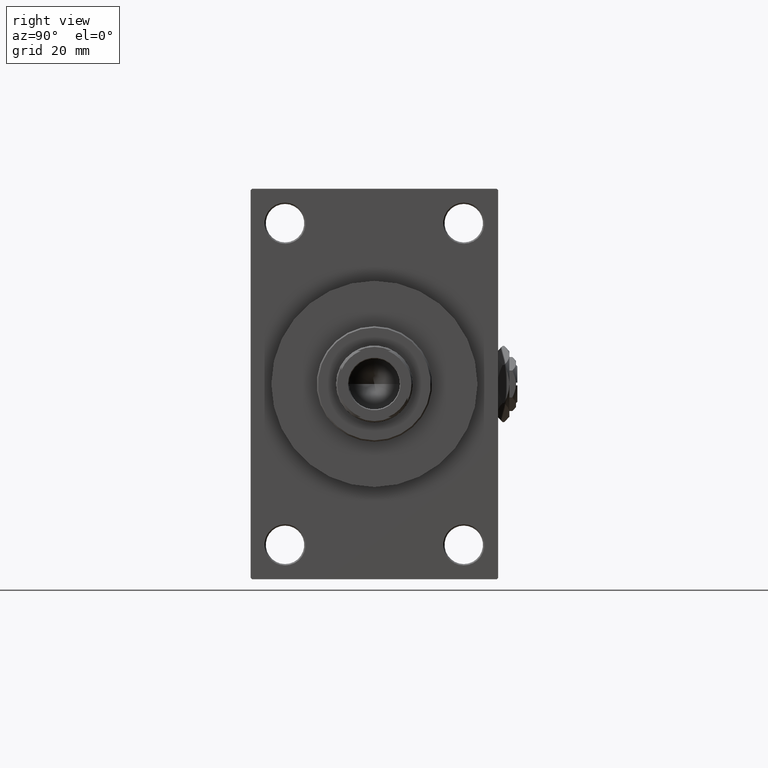
[diagram: clean part render]
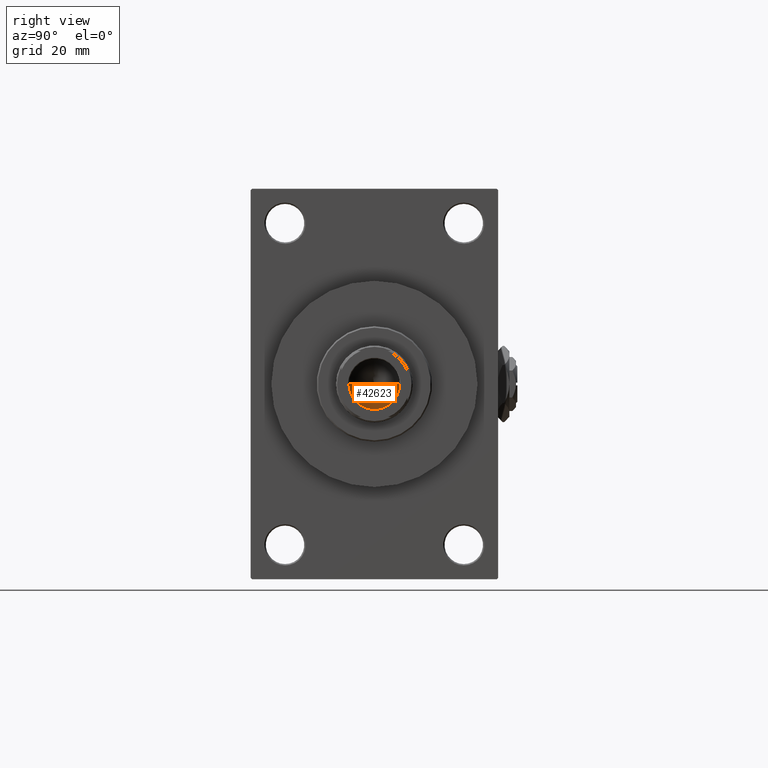
[diagram: same view with one face highlighted and labeled with its STEP entity id]
A machine part, right view. The second image highlights one B-rep face of the part: STEP entity #42623.
In plain terms, the highlighted conical surface has half-angle 59 deg.
Its self-contained STEP definition (entity closure, byte-faithful):
#3412 = LINE ( 'NONE', #14562, #23219 ) ;
#5974 = CARTESIAN_POINT ( 'NONE',  ( 0.000000000000000000, 0.000000000000000000, 114.9999999999999858 ) ) ;
#6928 = VERTEX_POINT ( 'NONE', #44288 ) ;
#10199 = ORIENTED_EDGE ( 'NONE', *, *, #35233, .F. ) ;
#13403 = CARTESIAN_POINT ( 'NONE',  ( 9.249999999999992895, 0.000000000000000000, 114.9999999999999858 ) ) ;
#13628 = EDGE_LOOP ( 'NONE', ( #10199, #29301, #29985 ) ) ;
#14562 = CARTESIAN_POINT ( 'NONE',  ( 9.249999999999992895, 0.000000000000000000, 114.9999999999999858 ) ) ;
#15306 = CARTESIAN_POINT ( 'NONE',  ( -9.249999999999992895, 1.132798289211300712E-15, 114.9999999999999858 ) ) ;
#16204 = DIRECTION ( 'NONE',  ( -0.8571673007021117785, 1.049727191138617956E-16, 0.5150380749100550437 ) ) ;
#16843 = AXIS2_PLACEMENT_3D ( 'NONE', #47442, #20226, #43950 ) ;
#17628 = AXIS2_PLACEMENT_3D ( 'NONE', #5974, #21090, #40375 ) ;
#20226 = DIRECTION ( 'NONE',  ( -0.000000000000000000, -0.000000000000000000, 1.000000000000000000 ) ) ;
#21090 = DIRECTION ( 'NONE',  ( -0.000000000000000000, -0.000000000000000000, 1.000000000000000000 ) ) ;
#23219 = VECTOR ( 'NONE', #25713, 1000.000000000000000 ) ;
#25713 = DIRECTION ( 'NONE',  ( 0.8571673007021117785, 0.000000000000000000, 0.5150380749100550437 ) ) ;
#26872 = LINE ( 'NONE', #41957, #41186 ) ;
#29301 = ORIENTED_EDGE ( 'NONE', *, *, #43165, .T. ) ;
#29985 = ORIENTED_EDGE ( 'NONE', *, *, #38658, .T. ) ;
#31089 = CIRCLE ( 'NONE', #17628, 9.249999999999992895 ) ;
#32094 = FACE_OUTER_BOUND ( 'NONE', #13628, .T. ) ;
#35233 = EDGE_CURVE ( 'NONE', #6928, #43177, #26872, .T. ) ;
#38658 = EDGE_CURVE ( 'NONE', #42018, #43177, #31089, .T. ) ;
#40375 = DIRECTION ( 'NONE',  ( 1.000000000000000000, 0.000000000000000000, 0.000000000000000000 ) ) ;
#40553 = CONICAL_SURFACE ( 'NONE', #16843, 9.249999999999992895, 1.029744258676653423 ) ;
#41186 = VECTOR ( 'NONE', #16204, 1000.000000000000000 ) ;
#41957 = CARTESIAN_POINT ( 'NONE',  ( -9.249999999999992895, 1.132798289211300712E-15, 114.9999999999999858 ) ) ;
#42018 = VERTEX_POINT ( 'NONE', #13403 ) ;
#42623 = ADVANCED_FACE ( 'NONE', ( #32094 ), #40553, .F. ) ;
#43165 = EDGE_CURVE ( 'NONE', #6928, #42018, #3412, .T. ) ;
#43177 = VERTEX_POINT ( 'NONE', #15306 ) ;
#43950 = DIRECTION ( 'NONE',  ( 1.000000000000000000, 0.000000000000000000, 0.000000000000000000 ) ) ;
#44288 = CARTESIAN_POINT ( 'NONE',  ( -9.769621978240258809E-15, 0.000000000000000000, 109.4420392739950501 ) ) ;
#47442 = CARTESIAN_POINT ( 'NONE',  ( 0.000000000000000000, 0.000000000000000000, 114.9999999999999858 ) ) ;